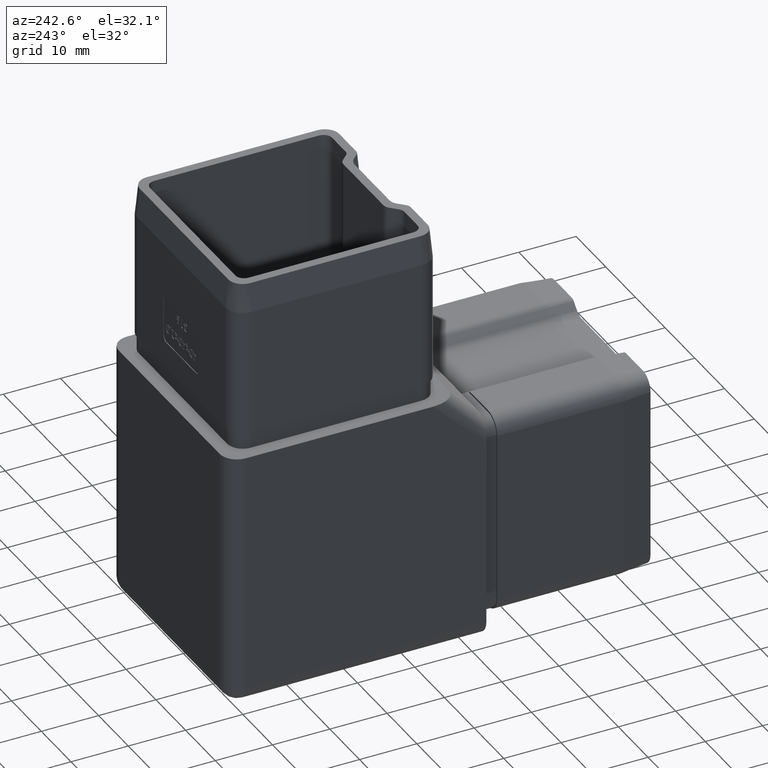
[diagram: clean part render]
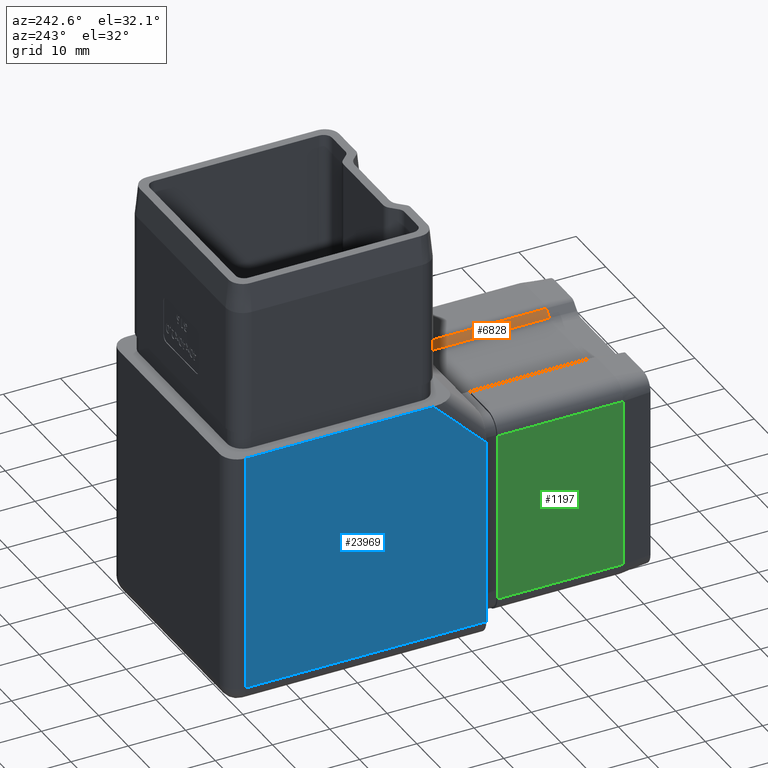
[diagram: same view with three faces highlighted in distinct colors, each labeled with its STEP entity id]
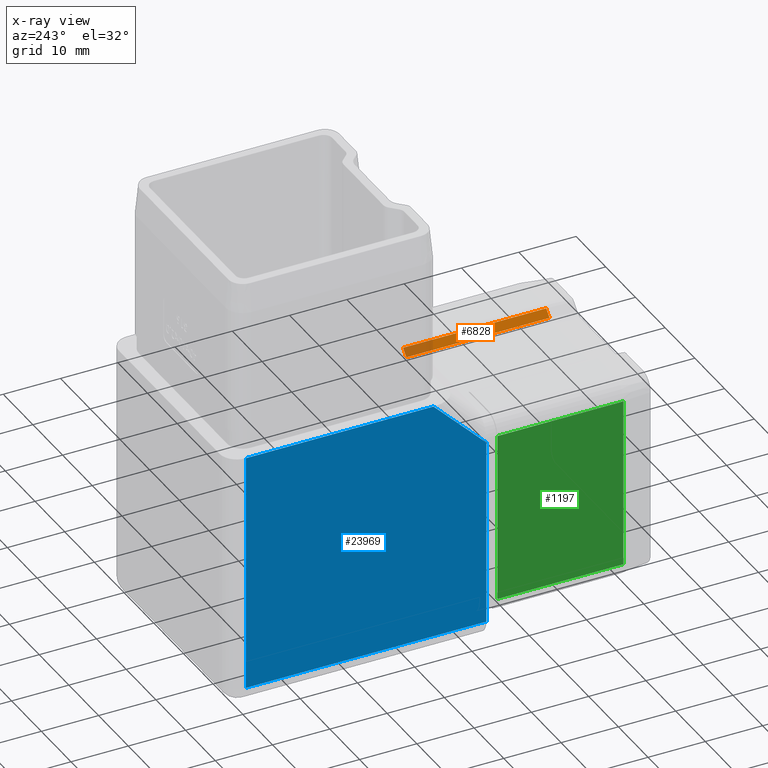
[diagram: x-ray of the same camera — body ghosted, the three highlighted faces saturated]
A machine part, auxiliary view with three faces highlighted in distinct colors.
The next image is the same camera in x-ray (body ghosted, the three faces saturated) — at least one of them is partly hidden behind the body in this view.
Their STEP definitions:

[orange] entity #6828 — the highlighted planar face has unit normal (-0.7071, -0, 0.7071).
#116 = CARTESIAN_POINT ( 'NONE',  ( 6.939339828220186100, -47.49999999999999300, 13.83933982822015100 ) ) ;
#1679 = LINE ( 'NONE', #4358, #23035 ) ;
#2480 = ORIENTED_EDGE ( 'NONE', *, *, #17173, .T. ) ;
#2672 = CARTESIAN_POINT ( 'NONE',  ( 8.060660171779824500, -47.49999999999999300, 14.96066017177979300 ) ) ;
#3215 = VERTEX_POINT ( 'NONE', #18647 ) ;
#3358 = CARTESIAN_POINT ( 'NONE',  ( 8.500000000000001800, -22.50000000000000400, 15.39999999999999000 ) ) ;
#3528 = CARTESIAN_POINT ( 'NONE',  ( 6.939339828220186100, -52.50000000000000700, 13.83933982822015500 ) ) ;
#4076 = AXIS2_PLACEMENT_3D ( 'NONE', #19655, #10182, #19830 ) ;
#4177 = ORIENTED_EDGE ( 'NONE', *, *, #21617, .T. ) ;
#4358 = CARTESIAN_POINT ( 'NONE',  ( 8.060660171779824500, -52.50000000000000700, 14.96066017177979600 ) ) ;
#6828 = ADVANCED_FACE ( 'NONE', ( #22804 ), #10426, .T. ) ;
#8416 = CARTESIAN_POINT ( 'NONE',  ( 8.060660171779824500, -22.50000000000000400, 14.96066017177980900 ) ) ;
#8726 = LINE ( 'NONE', #3528, #13022 ) ;
#8848 = VECTOR ( 'NONE', #23460, 1000.000000000000000 ) ;
#10039 = LINE ( 'NONE', #17817, #8848 ) ;
#10182 = DIRECTION ( 'NONE',  ( -0.7071067811865486800, -3.140184917367544900E-016, 0.7071067811865464600 ) ) ;
#10426 = PLANE ( 'NONE',  #4076 ) ;
#10998 = VERTEX_POINT ( 'NONE', #2672 ) ;
#12013 = VERTEX_POINT ( 'NONE', #116 ) ;
#13022 = VECTOR ( 'NONE', #20491, 1000.000000000000000 ) ;
#13208 = ORIENTED_EDGE ( 'NONE', *, *, #22738, .F. ) ;
#13671 = DIRECTION ( 'NONE',  ( 0.0000000000000000000, 1.000000000000000000, 4.440892098500625700E-016 ) ) ;
#14888 = DIRECTION ( 'NONE',  ( 0.7071067811865464600, -1.570092458683777400E-016, 0.7071067811865486800 ) ) ;
#15346 = VECTOR ( 'NONE', #14888, 999.9999999999998900 ) ;
#15420 = VERTEX_POINT ( 'NONE', #8416 ) ;
#17173 = EDGE_CURVE ( 'NONE', #10998, #15420, #1679, .T. ) ;
#17817 = CARTESIAN_POINT ( 'NONE',  ( 8.060660171779824500, -47.49999999999999300, 14.96066017177979300 ) ) ;
#18647 = CARTESIAN_POINT ( 'NONE',  ( 6.939339828220186100, -22.50000000000000400, 13.83933982822016900 ) ) ;
#19655 = CARTESIAN_POINT ( 'NONE',  ( 8.500000000000001800, -52.50000000000000700, 15.39999999999997500 ) ) ;
#19688 = ORIENTED_EDGE ( 'NONE', *, *, #22038, .F. ) ;
#19830 = DIRECTION ( 'NONE',  ( 0.7071067811865464600, 0.0000000000000000000, 0.7071067811865486800 ) ) ;
#19949 = EDGE_LOOP ( 'NONE', ( #4177, #19688, #2480, #13208 ) ) ;
#20491 = DIRECTION ( 'NONE',  ( -0.0000000000000000000, -1.000000000000000000, -4.440892098500625700E-016 ) ) ;
#21617 = EDGE_CURVE ( 'NONE', #3215, #12013, #8726, .T. ) ;
#22038 = EDGE_CURVE ( 'NONE', #10998, #12013, #10039, .T. ) ;
#22738 = EDGE_CURVE ( 'NONE', #3215, #15420, #22771, .T. ) ;
#22771 = LINE ( 'NONE', #3358, #15346 ) ;
#22804 = FACE_OUTER_BOUND ( 'NONE', #19949, .T. ) ;
#23035 = VECTOR ( 'NONE', #13671, 1000.000000000000000 ) ;
#23460 = DIRECTION ( 'NONE',  ( -0.7071067811865464600, 0.0000000000000000000, -0.7071067811865486800 ) ) ;

[blue] entity #23969 — the highlighted planar face has unit normal (1, 0, -0).
#523 = EDGE_CURVE ( 'NONE', #22562, #12693, #22534, .T. ) ;
#1504 = CARTESIAN_POINT ( 'NONE',  ( -19.99999999999999600, -15.37867965644036000, 20.37867965644036200 ) ) ;
#1592 = VERTEX_POINT ( 'NONE', #9002 ) ;
#1680 = CARTESIAN_POINT ( 'NONE',  ( -20.00000000000000400, 22.50000000000000000, 22.50000000000000000 ) ) ;
#1874 = DIRECTION ( 'NONE',  ( -1.541976423090495400E-016, 1.000000000000000000, 0.0000000000000000000 ) ) ;
#2506 = LINE ( 'NONE', #1504, #19972 ) ;
#3058 = EDGE_CURVE ( 'NONE', #1592, #22562, #23153, .T. ) ;
#3667 = ORIENTED_EDGE ( 'NONE', *, *, #21613, .F. ) ;
#3674 = VECTOR ( 'NONE', #16602, 1000.000000000000000 ) ;
#3833 = VERTEX_POINT ( 'NONE', #19986 ) ;
#3986 = CARTESIAN_POINT ( 'NONE',  ( -20.00000000000000400, 22.50000000000000000, -19.49999999999999600 ) ) ;
#4893 = CARTESIAN_POINT ( 'NONE',  ( -20.00000000000000400, 19.50000000000000000, 22.50000000000000000 ) ) ;
#4896 = CARTESIAN_POINT ( 'NONE',  ( -19.99999999999999600, -22.50000000000000000, -19.49999999999998200 ) ) ;
#5051 = VECTOR ( 'NONE', #22860, 1000.000000000000000 ) ;
#5704 = EDGE_CURVE ( 'NONE', #3833, #6044, #2506, .T. ) ;
#6044 = VERTEX_POINT ( 'NONE', #13451 ) ;
#6420 = VECTOR ( 'NONE', #10652, 1000.000000000000000 ) ;
#6813 = ORIENTED_EDGE ( 'NONE', *, *, #9738, .F. ) ;
#7168 = DIRECTION ( 'NONE',  ( -1.090341985197064800E-016, 0.7071067811865465700, 0.7071067811865485700 ) ) ;
#8528 = EDGE_LOOP ( 'NONE', ( #6813, #8845, #3667, #22104, #23530 ) ) ;
#8826 = LINE ( 'NONE', #10408, #6420 ) ;
#8845 = ORIENTED_EDGE ( 'NONE', *, *, #5704, .T. ) ;
#9002 = CARTESIAN_POINT ( 'NONE',  ( -20.00000000000000400, 19.50000000000000000, 22.50000000000000000 ) ) ;
#9738 = EDGE_CURVE ( 'NONE', #3833, #12693, #8826, .T. ) ;
#10408 = CARTESIAN_POINT ( 'NONE',  ( -19.99999999999999600, -22.50000000000000000, 22.50000000000000000 ) ) ;
#10484 = DIRECTION ( 'NONE',  ( 0.0000000000000000000, 0.0000000000000000000, -1.000000000000000000 ) ) ;
#10652 = DIRECTION ( 'NONE',  ( -0.0000000000000000000, -0.0000000000000000000, -1.000000000000000000 ) ) ;
#10731 = VECTOR ( 'NONE', #10484, 1000.000000000000000 ) ;
#11207 = DIRECTION ( 'NONE',  ( 1.000000000000000000, 1.541976423090495400E-016, -0.0000000000000000000 ) ) ;
#12693 = VERTEX_POINT ( 'NONE', #4896 ) ;
#13271 = CARTESIAN_POINT ( 'NONE',  ( -20.00000000000000400, 22.50000000000000000, 22.50000000000000000 ) ) ;
#13451 = CARTESIAN_POINT ( 'NONE',  ( -19.99999999999999600, -13.25735931288071100, 22.50000000000000000 ) ) ;
#14066 = CARTESIAN_POINT ( 'NONE',  ( -20.00000000000000400, 19.50000000000000000, -19.49999999999999600 ) ) ;
#15022 = FACE_OUTER_BOUND ( 'NONE', #8528, .T. ) ;
#16602 = DIRECTION ( 'NONE',  ( 1.541976423090495400E-016, -1.000000000000000000, 0.0000000000000000000 ) ) ;
#18274 = AXIS2_PLACEMENT_3D ( 'NONE', #13271, #11207, #1874 ) ;
#18772 = LINE ( 'NONE', #1680, #3674 ) ;
#19972 = VECTOR ( 'NONE', #7168, 1000.000000000000000 ) ;
#19986 = CARTESIAN_POINT ( 'NONE',  ( -19.99999999999999600, -22.50000000000000000, 13.25735931288070500 ) ) ;
#21613 = EDGE_CURVE ( 'NONE', #1592, #6044, #18772, .T. ) ;
#22104 = ORIENTED_EDGE ( 'NONE', *, *, #3058, .T. ) ;
#22534 = LINE ( 'NONE', #3986, #5051 ) ;
#22562 = VERTEX_POINT ( 'NONE', #14066 ) ;
#22860 = DIRECTION ( 'NONE',  ( 1.541976423090495400E-016, -1.000000000000000000, 0.0000000000000000000 ) ) ;
#23153 = LINE ( 'NONE', #4893, #10731 ) ;
#23530 = ORIENTED_EDGE ( 'NONE', *, *, #523, .T. ) ;
#23969 = ADVANCED_FACE ( 'NONE', ( #15022 ), #24610, .F. ) ;
#24610 = PLANE ( 'NONE',  #18274 ) ;

[green] entity #1197 — the highlighted planar face has unit normal (-1, 0, -0).
#519 = VECTOR ( 'NONE', #21994, 1000.000000000000000 ) ;
#614 = VERTEX_POINT ( 'NONE', #1015 ) ;
#1015 = CARTESIAN_POINT ( 'NONE',  ( -17.89999999999999900, -25.50000000000000400, 12.39999999999999000 ) ) ;
#1197 = ADVANCED_FACE ( 'NONE', ( #20117 ), #12180, .T. ) ;
#1507 = ORIENTED_EDGE ( 'NONE', *, *, #23951, .T. ) ;
#3699 = AXIS2_PLACEMENT_3D ( 'NONE', #10183, #14059, #15771 ) ;
#4579 = EDGE_LOOP ( 'NONE', ( #10179, #7283, #21326, #1507 ) ) ;
#4735 = EDGE_CURVE ( 'NONE', #13301, #8388, #24533, .T. ) ;
#4880 = VERTEX_POINT ( 'NONE', #13073 ) ;
#4910 = LINE ( 'NONE', #12464, #14410 ) ;
#6534 = CARTESIAN_POINT ( 'NONE',  ( -17.89999999999999500, -47.50000000000000700, 12.39999999999997200 ) ) ;
#7283 = ORIENTED_EDGE ( 'NONE', *, *, #4735, .F. ) ;
#8388 = VERTEX_POINT ( 'NONE', #18452 ) ;
#9941 = DIRECTION ( 'NONE',  ( 0.0000000000000000000, 2.328487887217191400E-016, -1.000000000000000000 ) ) ;
#10179 = ORIENTED_EDGE ( 'NONE', *, *, #18597, .T. ) ;
#10183 = CARTESIAN_POINT ( 'NONE',  ( -17.90000000000000200, -52.50000000000000700, 15.39999999999997900 ) ) ;
#10603 = VECTOR ( 'NONE', #20685, 1000.000000000000000 ) ;
#12180 = PLANE ( 'NONE',  #3699 ) ;
#12464 = CARTESIAN_POINT ( 'NONE',  ( -17.90000000000000200, -52.49999999999999300, -17.40000000000002300 ) ) ;
#13073 = CARTESIAN_POINT ( 'NONE',  ( -17.89999999999999900, -25.49999999999999600, -17.39999999999999900 ) ) ;
#13186 = CARTESIAN_POINT ( 'NONE',  ( -17.89999999999999900, -25.50000000000000400, 12.39999999999999000 ) ) ;
#13301 = VERTEX_POINT ( 'NONE', #6534 ) ;
#13688 = CARTESIAN_POINT ( 'NONE',  ( -17.89999999999999500, -47.50000000000000700, 12.39999999999997200 ) ) ;
#14059 = DIRECTION ( 'NONE',  ( -1.000000000000000000, 0.0000000000000000000, -0.0000000000000000000 ) ) ;
#14153 = EDGE_CURVE ( 'NONE', #13301, #614, #23705, .T. ) ;
#14410 = VECTOR ( 'NONE', #15893, 1000.000000000000000 ) ;
#15771 = DIRECTION ( 'NONE',  ( -0.0000000000000000000, 0.0000000000000000000, 1.000000000000000000 ) ) ;
#15893 = DIRECTION ( 'NONE',  ( -0.0000000000000000000, -1.000000000000000000, -4.440892098500626200E-016 ) ) ;
#17396 = VECTOR ( 'NONE', #9941, 1000.000000000000000 ) ;
#17401 = LINE ( 'NONE', #13186, #10603 ) ;
#18452 = CARTESIAN_POINT ( 'NONE',  ( -17.89999999999999500, -47.50000000000000000, -17.40000000000002000 ) ) ;
#18597 = EDGE_CURVE ( 'NONE', #4880, #8388, #4910, .T. ) ;
#20117 = FACE_OUTER_BOUND ( 'NONE', #4579, .T. ) ;
#20685 = DIRECTION ( 'NONE',  ( 0.0000000000000000000, 2.328487887217191900E-016, -1.000000000000000000 ) ) ;
#21326 = ORIENTED_EDGE ( 'NONE', *, *, #14153, .T. ) ;
#21663 = CARTESIAN_POINT ( 'NONE',  ( -17.90000000000000200, -52.50000000000000700, 12.39999999999997900 ) ) ;
#21994 = DIRECTION ( 'NONE',  ( 0.0000000000000000000, 1.000000000000000000, 4.440892098500626200E-016 ) ) ;
#23705 = LINE ( 'NONE', #21663, #519 ) ;
#23951 = EDGE_CURVE ( 'NONE', #614, #4880, #17401, .T. ) ;
#24533 = LINE ( 'NONE', #13688, #17396 ) ;